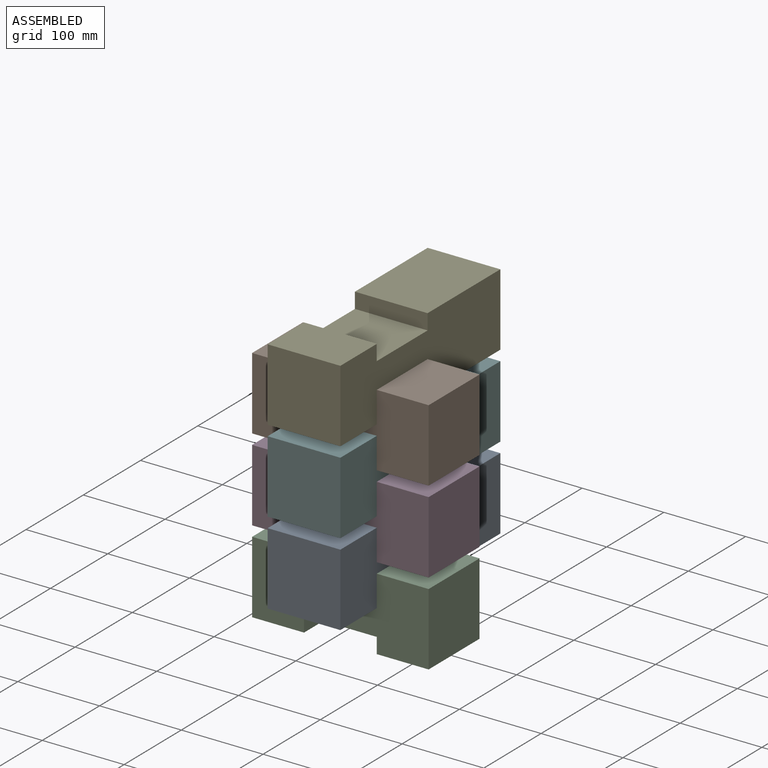
[diagram: assembled view]
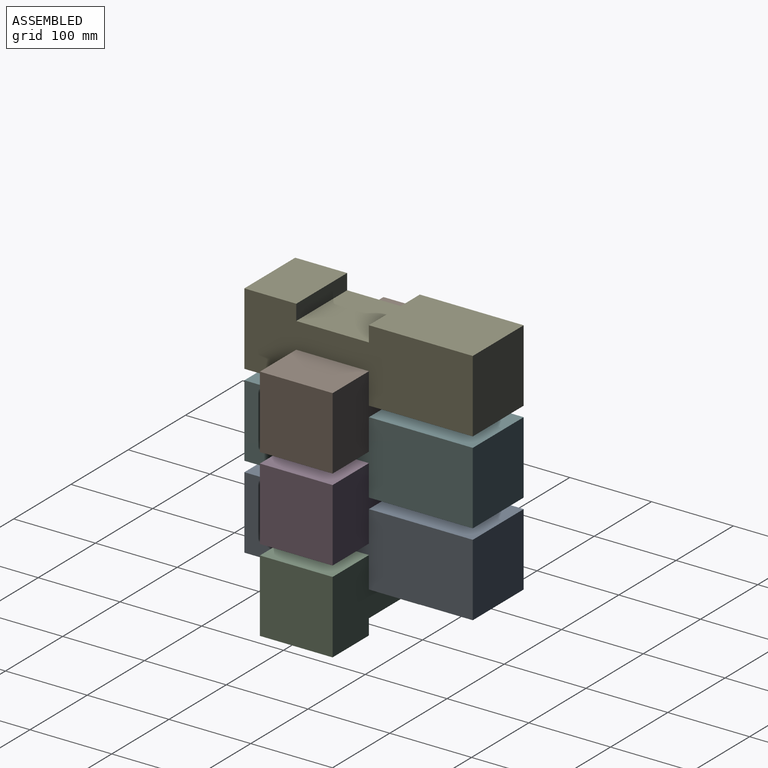
[diagram: assembled view, second angle]
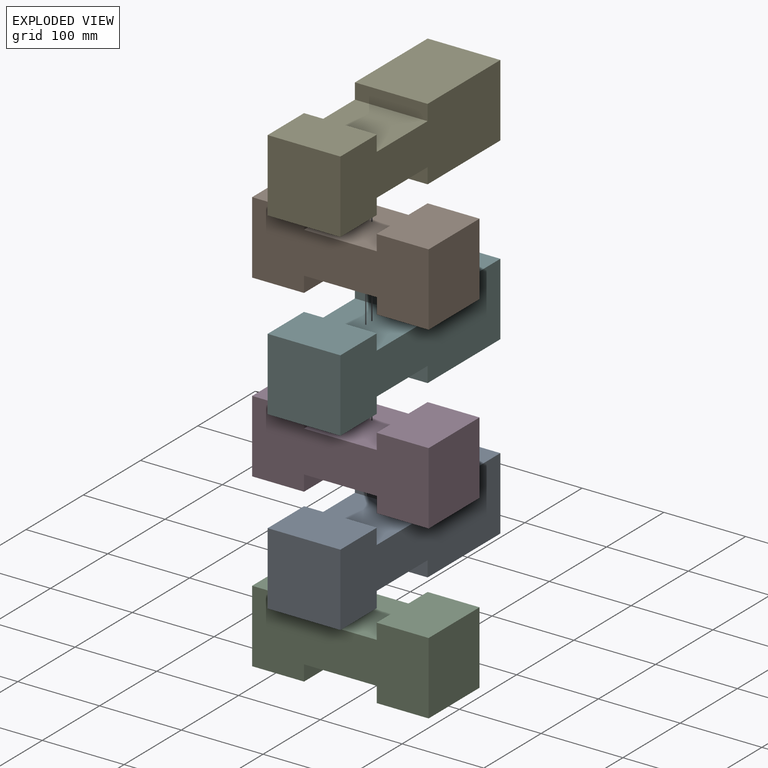
[diagram: exploded view]
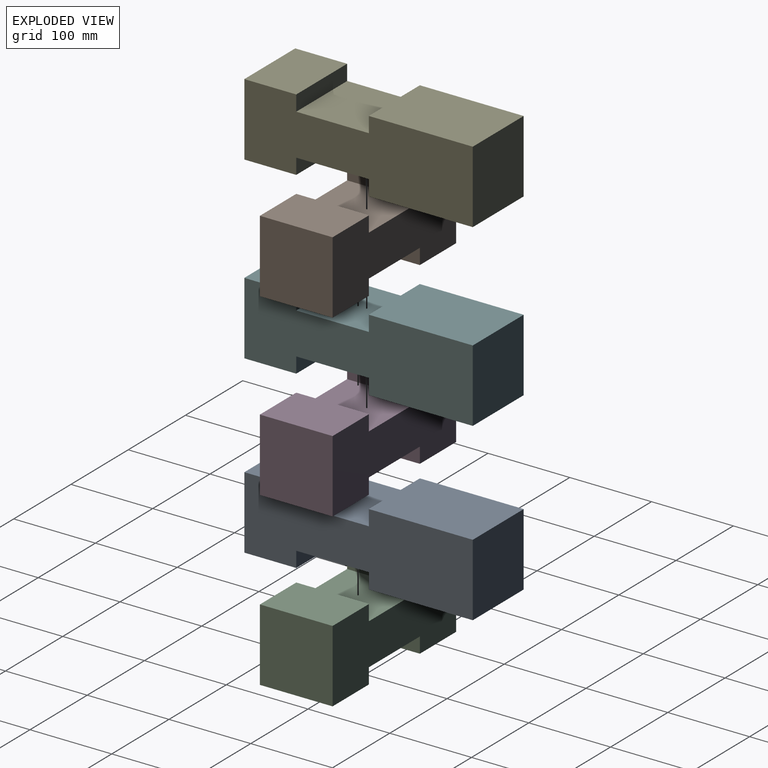
[diagram: exploded view, second angle]
ASSEMBLY  parts=6 mates=5
PART A: 14 faces, bbox 279.4x88.9x88.9 mm
  f0: plane 88.9x63.5mm, normal (0,0,1), area 5645.1mm2, adj f2,f3,f6,f13
  f1: plane 88.9x63.5mm, normal (0,0,-1), area 5645.1mm2, adj f2,f3,f6,f9
  f2: plane 279.4x88.9mm, normal (0,-1,0), area 21451.6mm2, adj f0,f1,f4,f5,f6,f7,f8,f9
  f3: plane 279.4x88.9mm, normal (0,1,0), area 21451.6mm2, adj f0,f1,f4,f5,f6,f7,f8,f9
  f4: plane 127x88.9mm, normal (0,0,1), area 11290.3mm2, adj f2,f3,f7,f11
  f5: plane 127x88.9mm, normal (0,0,-1), area 11290.3mm2, adj f2,f3,f7,f8
  f6: plane 88.9x88.9mm, normal (1,0,0), area 7903.2mm2, adj f0,f1,f2,f3
  f7: plane 88.9x88.9mm, normal (-1,0,0), area 7903.2mm2, adj f2,f3,f4,f5
  f8: plane 88.9x19.05mm, normal (1,0,0), area 1693.5mm2, adj f2,f3,f5,f10
  f9: plane 88.9x19.05mm, normal (-1,0,0), area 1693.5mm2, adj f1,f2,f3,f10
  f10: plane 88.9x88.9mm, normal (0,0,-1), area 7903.2mm2, adj f2,f3,f8,f9
  f11: plane 88.9x19.05mm, normal (1,0,0), area 1693.5mm2, adj f2,f3,f4,f12
  f12: plane 88.9x88.9mm, normal (0,0,1), area 7903.2mm2, adj f2,f3,f11,f13
  f13: plane 88.9x19.05mm, normal (-1,0,0), area 1693.5mm2, adj f0,f2,f3,f12
PART B: 14 faces, bbox 215.9x88.9x88.9 mm
  f0: plane 88.9x63.5mm, normal (0,0,1), area 5645.2mm2, adj f2,f3,f6,f13
  f1: plane 88.9x63.5mm, normal (0,0,-1), area 5645.2mm2, adj f2,f3,f6,f9
  f2: plane 215.9x88.9mm, normal (0,-1,0), area 15806.4mm2, adj f0,f1,f4,f5,f6,f7,f8,f9
  f3: plane 215.9x88.9mm, normal (0,1,0), area 15806.4mm2, adj f0,f1,f4,f5,f6,f7,f8,f9
  f4: plane 88.9x63.5mm, normal (0,0,1), area 5645.2mm2, adj f2,f3,f7,f11
  f5: plane 88.9x63.5mm, normal (0,0,-1), area 5645.2mm2, adj f2,f3,f7,f8
  f6: plane 88.9x88.9mm, normal (1,0,0), area 7903.2mm2, adj f0,f1,f2,f3
  f7: plane 88.9x88.9mm, normal (-1,0,0), area 7903.2mm2, adj f2,f3,f4,f5
  f8: plane 88.9x19.05mm, normal (1,0,0), area 1693.5mm2, adj f2,f3,f5,f10
  f9: plane 88.9x19.05mm, normal (-1,0,0), area 1693.5mm2, adj f1,f2,f3,f10
  f10: plane 88.9x88.9mm, normal (0,0,-1), area 7903.2mm2, adj f2,f3,f8,f9
  f11: plane 88.9x19.05mm, normal (1,0,0), area 1693.5mm2, adj f2,f3,f4,f12
  f12: plane 88.9x88.9mm, normal (0,0,1), area 7903.2mm2, adj f2,f3,f11,f13
  f13: plane 88.9x19.05mm, normal (-1,0,0), area 1693.5mm2, adj f0,f2,f3,f12
PART C: same geometry as B
PART D: same geometry as B
PART E: same geometry as A
PART F: same geometry as A
PLACE A rot(axis=(0,0,-1),90deg) t=(50.04,158.82,-5.53)mm
PLACE B t=(-13.46,-57.08,146.87)mm
PLACE C t=(-13.46,-57.08,-56.33)mm fixed
PLACE D t=(-13.46,-57.08,45.27)mm
PLACE E rot(axis=(0,0,-1),90deg) t=(50.04,158.82,197.67)mm
PLACE F rot(axis=(0,0,-1),90deg) t=(50.04,158.82,96.07)mm
MATE fastened D.f12 <-> F.f10  axis (0,0,1) through (94.49,-12.63,26.22)mm
MATE fastened F.f12 <-> B.f10  axis (0,0,1) through (94.49,-12.63,77.02)mm
MATE fastened A.f12 <-> D.f10  axis (0,0,1) through (94.49,-12.63,-24.58)mm
MATE fastened C.f12 <-> A.f10  axis (0,0,1) through (94.49,-12.63,-75.38)mm
MATE fastened B.f12 <-> E.f10  axis (0,0,1) through (94.49,-12.63,127.82)mm
